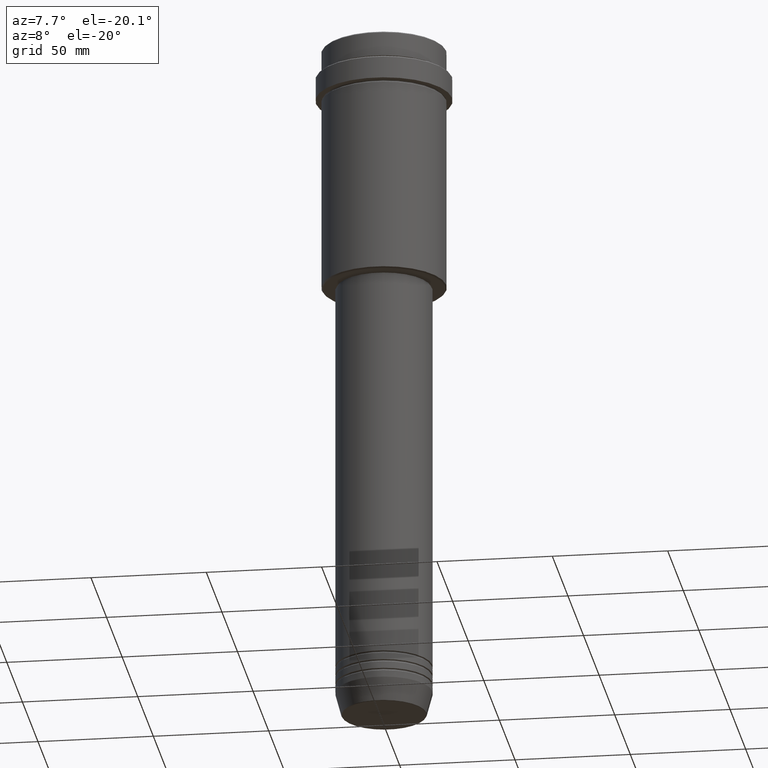
[diagram: clean part render]
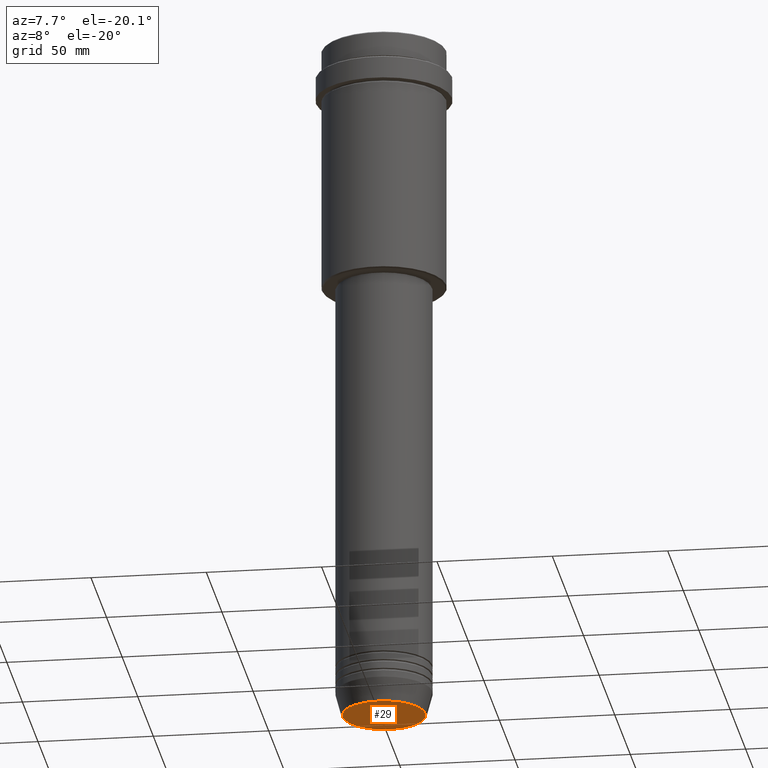
[diagram: same view with one face highlighted and labeled with its STEP entity id]
A machine part, auxiliary view. The second image highlights one B-rep face of the part: STEP entity #29.
In plain terms, the highlighted planar face has unit normal (0, -0, 1).
Its self-contained STEP definition (entity closure, byte-faithful):
#29 = ADVANCED_FACE ( 'NONE', ( #994 ), #132, .F. ) ;
#77 = EDGE_CURVE ( 'NONE', #754, #1329, #895, .T. ) ;
#132 = PLANE ( 'NONE',  #361 ) ;
#205 = DIRECTION ( 'NONE',  ( 0.000000000000000000, 0.000000000000000000, -1.000000000000000000 ) ) ;
#238 = DIRECTION ( 'NONE',  ( 1.000000000000000000, 0.000000000000000000, 0.000000000000000000 ) ) ;
#346 = CARTESIAN_POINT ( 'NONE',  ( 0.000000000000000000, 0.000000000000000000, -303.0000000000000568 ) ) ;
#361 = AXIS2_PLACEMENT_3D ( 'NONE', #684, #1115, #1177 ) ;
#448 = EDGE_LOOP ( 'NONE', ( #982, #820 ) ) ;
#530 = CARTESIAN_POINT ( 'NONE',  ( -17.93684458169929030, 2.226202879662625134E-15, -303.0000000000000568 ) ) ;
#538 = AXIS2_PLACEMENT_3D ( 'NONE', #346, #205, #880 ) ;
#676 = AXIS2_PLACEMENT_3D ( 'NONE', #1317, #1332, #238 ) ;
#684 = CARTESIAN_POINT ( 'NONE',  ( 0.000000000000000000, 0.000000000000000000, -303.0000000000000568 ) ) ;
#754 = VERTEX_POINT ( 'NONE', #530 ) ;
#820 = ORIENTED_EDGE ( 'NONE', *, *, #77, .T. ) ;
#880 = DIRECTION ( 'NONE',  ( 1.000000000000000000, 0.000000000000000000, 0.000000000000000000 ) ) ;
#895 = CIRCLE ( 'NONE', #676, 17.93684458169929030 ) ;
#982 = ORIENTED_EDGE ( 'NONE', *, *, #1378, .T. ) ;
#994 = FACE_OUTER_BOUND ( 'NONE', #448, .T. ) ;
#1115 = DIRECTION ( 'NONE',  ( 0.000000000000000000, -0.000000000000000000, 1.000000000000000000 ) ) ;
#1177 = DIRECTION ( 'NONE',  ( 1.000000000000000000, 0.000000000000000000, 0.000000000000000000 ) ) ;
#1192 = CIRCLE ( 'NONE', #538, 17.93684458169929030 ) ;
#1304 = CARTESIAN_POINT ( 'NONE',  ( 17.93684458169929030, 0.000000000000000000, -303.0000000000000568 ) ) ;
#1317 = CARTESIAN_POINT ( 'NONE',  ( 0.000000000000000000, 0.000000000000000000, -303.0000000000000568 ) ) ;
#1329 = VERTEX_POINT ( 'NONE', #1304 ) ;
#1332 = DIRECTION ( 'NONE',  ( 0.000000000000000000, 0.000000000000000000, -1.000000000000000000 ) ) ;
#1378 = EDGE_CURVE ( 'NONE', #1329, #754, #1192, .T. ) ;